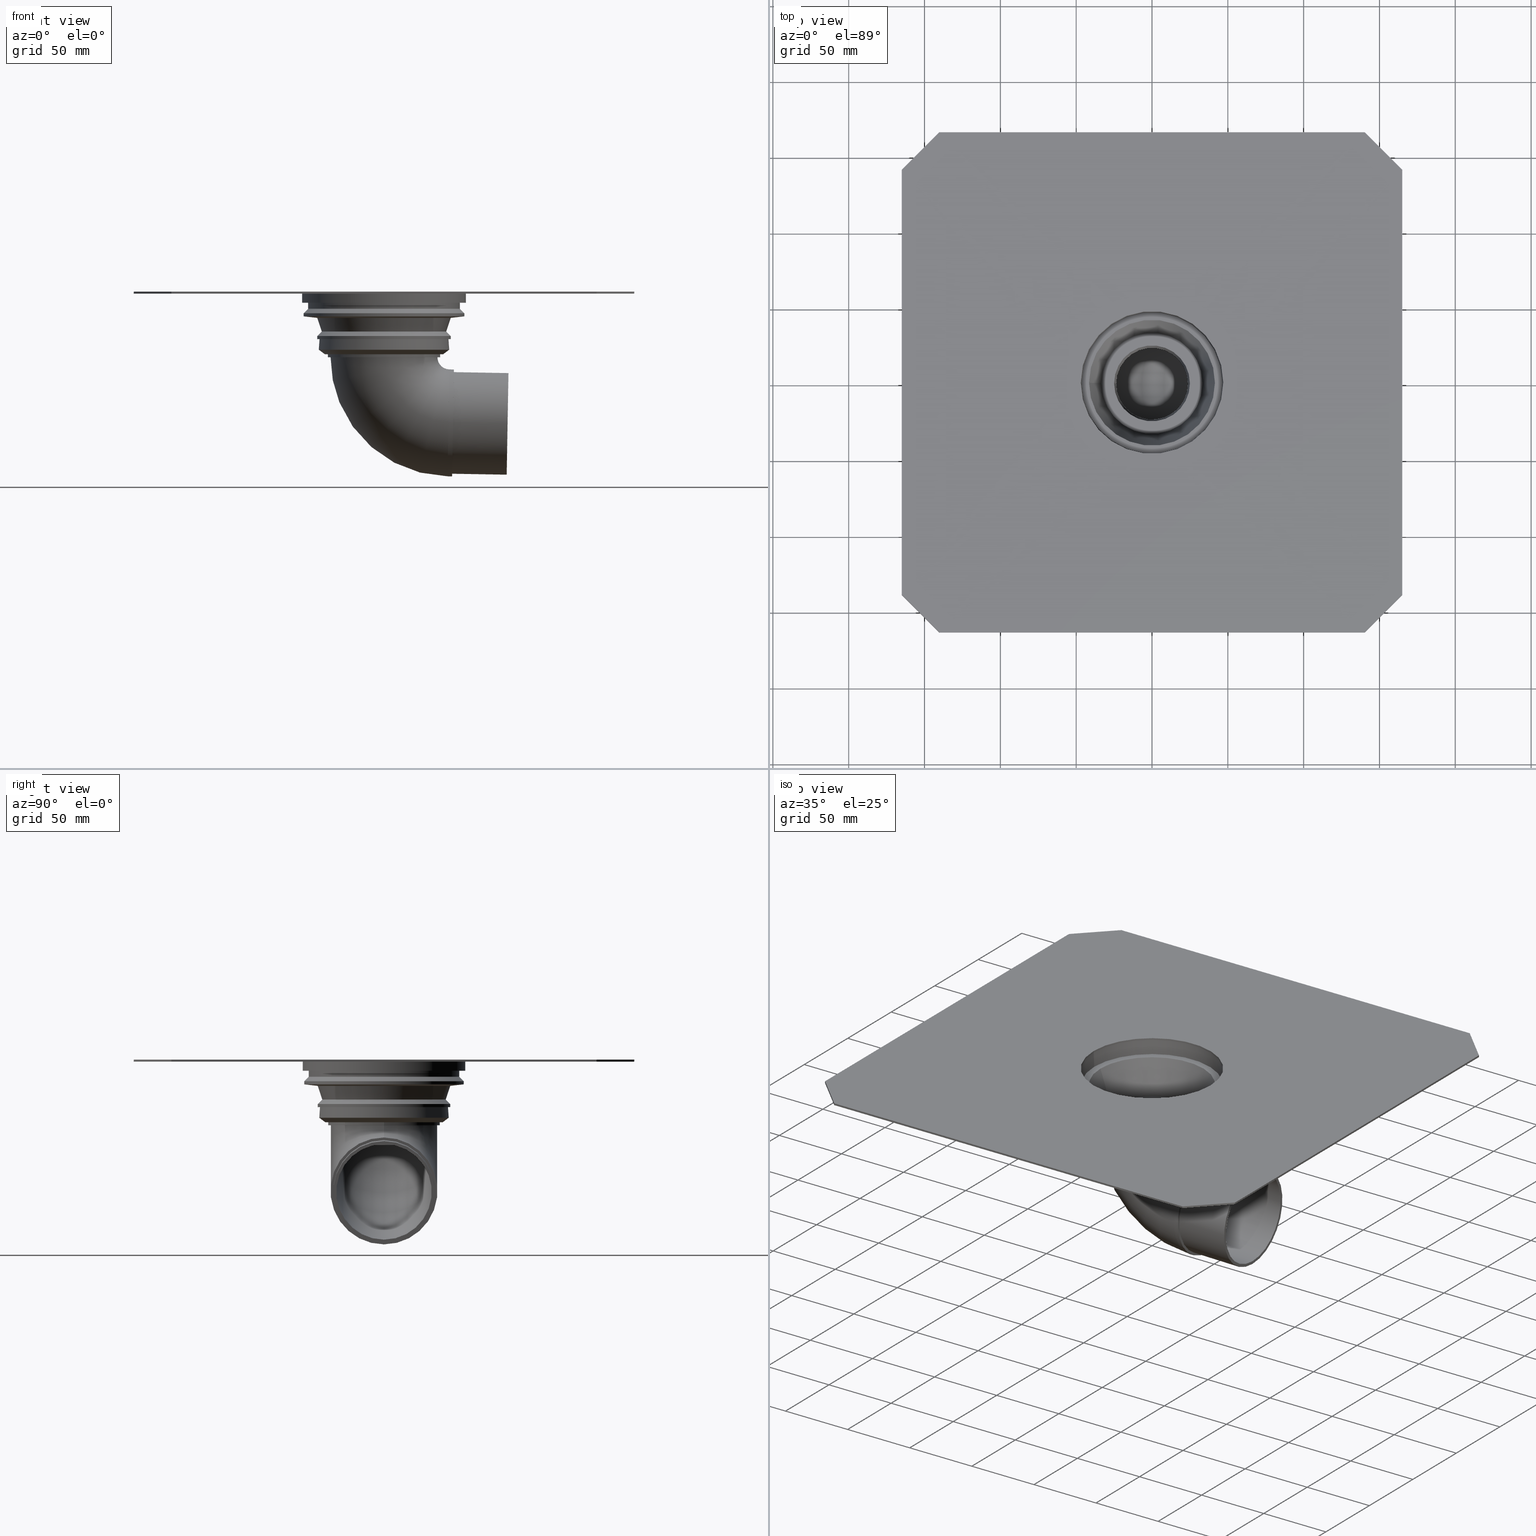
[diagram: canonical four-view strip — front | top / right | iso, engineering-drawing reading convention]
A machine part, canonical four-view strip (front | top / right | iso — engineering-drawing reading convention). The complete STEP part file that produces these views, byte-faithful:
ISO-10303-21;
HEADER;
/* Generated by software containing ST-Developer
 * from STEP Tools, Inc. (www.steptools.com) 
 */
/* OPTION: using custom renumber hook */

FILE_DESCRIPTION(
/* description */ ('STEP AP214'),
/* implementation_level */ '2;1');

FILE_NAME(
/* name */ '482063001(1)',
/* time_stamp */ '2022-12-23T08:21:42+01:00',
/* author */ ('License CC BY-ND 4.0'),
/* organization */ ('CADENAS'),
/* preprocessor_version */ 'ST-DEVELOPER v18.102',
/* originating_system */ 'PARTsolutions',
/* authorisation */ '  ');

FILE_SCHEMA (('AUTOMOTIVE_DESIGN {1 0 10303 214 3 1 1}'));
ENDSEC;

DATA;
#10=PROPERTY_DEFINITION_REPRESENTATION(#14,#12);
#11=PROPERTY_DEFINITION_REPRESENTATION(#15,#13);
#12=REPRESENTATION('',(#16),#991);
#13=REPRESENTATION('',(#17),#991);
#14=PROPERTY_DEFINITION('pmi validation property','',#996);
#15=PROPERTY_DEFINITION('pmi validation property','',#996);
#16=VALUE_REPRESENTATION_ITEM('number of annotations',COUNT_MEASURE(0.));
#17=VALUE_REPRESENTATION_ITEM('number of views',COUNT_MEASURE(0.));
#18=SHAPE_REPRESENTATION_RELATIONSHIP('','',#579,#19);
#19=ADVANCED_BREP_SHAPE_REPRESENTATION('',(#577),#991);
#20=TOROIDAL_SURFACE('',#642,43.25,33.25);
#21=TOROIDAL_SURFACE('',#644,43.25,35.25);
#22=CONICAL_SURFACE('',#600,47.,0.0499583957219435);
#23=CONICAL_SURFACE('',#604,41.5,0.321750554396642);
#24=CONICAL_SURFACE('',#608,25.,0.0659652589434213);
#25=CONICAL_SURFACE('',#612,26.6421818181818,0.0659587263801632);
#26=CONICAL_SURFACE('',#616,39.,0.927295218001612);
#27=CONICAL_SURFACE('',#618,43.,0.0713074647852903);
#28=CONICAL_SURFACE('',#624,44.,0.785398163397449);
#29=CONICAL_SURFACE('',#626,41.,0.321750554396642);
#30=CONICAL_SURFACE('',#628,44.,1.460139105621);
#31=CONICAL_SURFACE('',#632,53.,0.785398163397447);
#32=CIRCLE('',#589,47.);
#33=CIRCLE('',#590,47.);
#34=CIRCLE('',#593,33.25);
#35=CIRCLE('',#594,27.633);
#36=CIRCLE('',#596,54.);
#37=CIRCLE('',#597,50.);
#38=CIRCLE('',#599,54.);
#39=CIRCLE('',#601,46.5);
#40=CIRCLE('',#603,41.5);
#41=CIRCLE('',#605,33.35);
#42=CIRCLE('',#607,25.);
#43=CIRCLE('',#609,23.6424442609414);
#44=CIRCLE('',#611,26.6421818181818);
#45=CIRCLE('',#614,39.);
#46=CIRCLE('',#615,37.);
#47=CIRCLE('',#617,43.);
#48=CIRCLE('',#619,42.5);
#49=CIRCLE('',#621,44.);
#50=CIRCLE('',#623,44.);
#51=CIRCLE('',#625,41.);
#52=CIRCLE('',#627,44.);
#53=CIRCLE('',#629,53.);
#54=CIRCLE('',#631,53.);
#55=CIRCLE('',#633,50.);
#56=CIRCLE('',#637,35.25);
#57=CIRCLE('',#638,37.);
#58=CIRCLE('',#640,33.25);
#59=CIRCLE('',#643,33.25);
#60=CIRCLE('',#645,35.25);
#61=CIRCLE('',#647,31.5);
#62=CIRCLE('',#649,31.5);
#63=CIRCLE('',#651,35.25);
#64=CIRCLE('',#653,33.5);
#65=CIRCLE('',#655,33.5);
#66=CYLINDRICAL_SURFACE('',#588,47.);
#67=CYLINDRICAL_SURFACE('',#598,54.);
#68=CYLINDRICAL_SURFACE('',#622,44.);
#69=CYLINDRICAL_SURFACE('',#630,53.);
#70=CYLINDRICAL_SURFACE('',#634,50.);
#71=CYLINDRICAL_SURFACE('',#639,33.25);
#72=CYLINDRICAL_SURFACE('',#641,37.);
#73=CYLINDRICAL_SURFACE('',#648,31.5);
#74=CYLINDRICAL_SURFACE('',#650,35.25);
#75=CYLINDRICAL_SURFACE('',#654,33.5);
#76=ORIENTED_EDGE('',*,*,#192,.F.);
#77=ORIENTED_EDGE('',*,*,#193,.T.);
#78=ORIENTED_EDGE('',*,*,#194,.T.);
#79=ORIENTED_EDGE('',*,*,#195,.F.);
#80=ORIENTED_EDGE('',*,*,#196,.F.);
#81=ORIENTED_EDGE('',*,*,#195,.T.);
#82=ORIENTED_EDGE('',*,*,#197,.T.);
#83=ORIENTED_EDGE('',*,*,#198,.F.);
#84=ORIENTED_EDGE('',*,*,#199,.F.);
#85=ORIENTED_EDGE('',*,*,#198,.T.);
#86=ORIENTED_EDGE('',*,*,#200,.T.);
#87=ORIENTED_EDGE('',*,*,#201,.F.);
#88=ORIENTED_EDGE('',*,*,#202,.F.);
#89=ORIENTED_EDGE('',*,*,#201,.T.);
#90=ORIENTED_EDGE('',*,*,#203,.T.);
#91=ORIENTED_EDGE('',*,*,#204,.F.);
#92=ORIENTED_EDGE('',*,*,#205,.F.);
#93=ORIENTED_EDGE('',*,*,#204,.T.);
#94=ORIENTED_EDGE('',*,*,#206,.T.);
#95=ORIENTED_EDGE('',*,*,#207,.F.);
#96=ORIENTED_EDGE('',*,*,#208,.F.);
#97=ORIENTED_EDGE('',*,*,#207,.T.);
#98=ORIENTED_EDGE('',*,*,#209,.T.);
#99=ORIENTED_EDGE('',*,*,#210,.F.);
#100=ORIENTED_EDGE('',*,*,#211,.F.);
#101=ORIENTED_EDGE('',*,*,#210,.T.);
#102=ORIENTED_EDGE('',*,*,#212,.T.);
#103=ORIENTED_EDGE('',*,*,#213,.F.);
#104=ORIENTED_EDGE('',*,*,#214,.T.);
#105=ORIENTED_EDGE('',*,*,#215,.T.);
#106=ORIENTED_EDGE('',*,*,#216,.F.);
#107=ORIENTED_EDGE('',*,*,#213,.T.);
#108=ORIENTED_EDGE('',*,*,#217,.T.);
#109=ORIENTED_EDGE('',*,*,#193,.F.);
#110=ORIENTED_EDGE('',*,*,#218,.F.);
#111=ORIENTED_EDGE('',*,*,#219,.F.);
#112=ORIENTED_EDGE('',*,*,#220,.T.);
#113=ORIENTED_EDGE('',*,*,#221,.F.);
#114=ORIENTED_EDGE('',*,*,#222,.T.);
#115=ORIENTED_EDGE('',*,*,#220,.F.);
#116=ORIENTED_EDGE('',*,*,#223,.T.);
#117=ORIENTED_EDGE('',*,*,#214,.F.);
#118=ORIENTED_EDGE('',*,*,#224,.T.);
#119=ORIENTED_EDGE('',*,*,#223,.F.);
#120=ORIENTED_EDGE('',*,*,#225,.T.);
#121=ORIENTED_EDGE('',*,*,#224,.F.);
#122=ORIENTED_EDGE('',*,*,#226,.T.);
#123=ORIENTED_EDGE('',*,*,#225,.F.);
#124=ORIENTED_EDGE('',*,*,#227,.T.);
#125=ORIENTED_EDGE('',*,*,#226,.F.);
#126=ORIENTED_EDGE('',*,*,#228,.T.);
#127=ORIENTED_EDGE('',*,*,#227,.F.);
#128=ORIENTED_EDGE('',*,*,#219,.T.);
#129=ORIENTED_EDGE('',*,*,#228,.F.);
#130=ORIENTED_EDGE('',*,*,#229,.T.);
#131=ORIENTED_EDGE('',*,*,#230,.F.);
#132=ORIENTED_EDGE('',*,*,#231,.T.);
#133=ORIENTED_EDGE('',*,*,#229,.F.);
#134=ORIENTED_EDGE('',*,*,#232,.T.);
#135=ORIENTED_EDGE('',*,*,#231,.F.);
#136=ORIENTED_EDGE('',*,*,#233,.T.);
#137=ORIENTED_EDGE('',*,*,#232,.F.);
#138=ORIENTED_EDGE('',*,*,#234,.T.);
#139=ORIENTED_EDGE('',*,*,#233,.F.);
#140=ORIENTED_EDGE('',*,*,#235,.T.);
#141=ORIENTED_EDGE('',*,*,#234,.F.);
#142=ORIENTED_EDGE('',*,*,#236,.T.);
#143=ORIENTED_EDGE('',*,*,#235,.F.);
#144=ORIENTED_EDGE('',*,*,#237,.T.);
#145=ORIENTED_EDGE('',*,*,#236,.F.);
#146=ORIENTED_EDGE('',*,*,#238,.T.);
#147=ORIENTED_EDGE('',*,*,#237,.F.);
#148=ORIENTED_EDGE('',*,*,#239,.T.);
#149=ORIENTED_EDGE('',*,*,#238,.F.);
#150=ORIENTED_EDGE('',*,*,#221,.T.);
#151=ORIENTED_EDGE('',*,*,#239,.F.);
#152=ORIENTED_EDGE('',*,*,#222,.F.);
#153=ORIENTED_EDGE('',*,*,#194,.F.);
#154=ORIENTED_EDGE('',*,*,#217,.F.);
#155=ORIENTED_EDGE('',*,*,#212,.F.);
#156=ORIENTED_EDGE('',*,*,#209,.F.);
#157=ORIENTED_EDGE('',*,*,#206,.F.);
#158=ORIENTED_EDGE('',*,*,#203,.F.);
#159=ORIENTED_EDGE('',*,*,#200,.F.);
#160=ORIENTED_EDGE('',*,*,#197,.F.);
#161=ORIENTED_EDGE('',*,*,#240,.T.);
#162=ORIENTED_EDGE('',*,*,#241,.F.);
#163=ORIENTED_EDGE('',*,*,#218,.T.);
#164=ORIENTED_EDGE('',*,*,#242,.F.);
#165=ORIENTED_EDGE('',*,*,#241,.T.);
#166=ORIENTED_EDGE('',*,*,#230,.T.);
#167=ORIENTED_EDGE('',*,*,#243,.F.);
#168=ORIENTED_EDGE('',*,*,#242,.T.);
#169=ORIENTED_EDGE('',*,*,#244,.T.);
#170=ORIENTED_EDGE('',*,*,#240,.F.);
#171=ORIENTED_EDGE('',*,*,#243,.T.);
#172=ORIENTED_EDGE('',*,*,#245,.F.);
#173=ORIENTED_EDGE('',*,*,#245,.T.);
#174=ORIENTED_EDGE('',*,*,#246,.F.);
#175=ORIENTED_EDGE('',*,*,#247,.T.);
#176=ORIENTED_EDGE('',*,*,#244,.F.);
#177=ORIENTED_EDGE('',*,*,#248,.T.);
#178=ORIENTED_EDGE('',*,*,#247,.F.);
#179=ORIENTED_EDGE('',*,*,#249,.T.);
#180=ORIENTED_EDGE('',*,*,#248,.F.);
#181=ORIENTED_EDGE('',*,*,#246,.T.);
#182=ORIENTED_EDGE('',*,*,#249,.F.);
#183=ORIENTED_EDGE('',*,*,#215,.F.);
#184=ORIENTED_EDGE('',*,*,#192,.T.);
#185=ORIENTED_EDGE('',*,*,#196,.T.);
#186=ORIENTED_EDGE('',*,*,#199,.T.);
#187=ORIENTED_EDGE('',*,*,#202,.T.);
#188=ORIENTED_EDGE('',*,*,#205,.T.);
#189=ORIENTED_EDGE('',*,*,#208,.T.);
#190=ORIENTED_EDGE('',*,*,#211,.T.);
#191=ORIENTED_EDGE('',*,*,#216,.T.);
#192=EDGE_CURVE('',#250,#251,#300,.T.);
#193=EDGE_CURVE('',#250,#252,#301,.T.);
#194=EDGE_CURVE('',#252,#253,#302,.T.);
#195=EDGE_CURVE('',#251,#253,#303,.T.);
#196=EDGE_CURVE('',#251,#254,#304,.T.);
#197=EDGE_CURVE('',#253,#255,#305,.T.);
#198=EDGE_CURVE('',#254,#255,#306,.T.);
#199=EDGE_CURVE('',#254,#256,#307,.T.);
#200=EDGE_CURVE('',#255,#257,#308,.T.);
#201=EDGE_CURVE('',#256,#257,#309,.T.);
#202=EDGE_CURVE('',#256,#258,#310,.T.);
#203=EDGE_CURVE('',#257,#259,#311,.T.);
#204=EDGE_CURVE('',#258,#259,#312,.T.);
#205=EDGE_CURVE('',#258,#260,#313,.T.);
#206=EDGE_CURVE('',#259,#261,#314,.T.);
#207=EDGE_CURVE('',#260,#261,#315,.T.);
#208=EDGE_CURVE('',#260,#262,#316,.T.);
#209=EDGE_CURVE('',#261,#263,#317,.T.);
#210=EDGE_CURVE('',#262,#263,#318,.T.);
#211=EDGE_CURVE('',#262,#264,#319,.T.);
#212=EDGE_CURVE('',#263,#265,#320,.T.);
#213=EDGE_CURVE('',#264,#265,#321,.T.);
#214=EDGE_CURVE('',#266,#266,#32,.T.);
#215=EDGE_CURVE('',#267,#267,#33,.T.);
#216=EDGE_CURVE('',#264,#250,#322,.T.);
#217=EDGE_CURVE('',#265,#252,#323,.T.);
#218=EDGE_CURVE('',#268,#268,#34,.F.);
#219=EDGE_CURVE('',#269,#269,#35,.T.);
#220=EDGE_CURVE('',#270,#270,#36,.T.);
#221=EDGE_CURVE('',#271,#271,#37,.T.);
#222=EDGE_CURVE('',#272,#272,#38,.F.);
#223=EDGE_CURVE('',#273,#273,#39,.T.);
#224=EDGE_CURVE('',#274,#274,#40,.T.);
#225=EDGE_CURVE('',#275,#275,#41,.T.);
#226=EDGE_CURVE('',#276,#276,#42,.T.);
#227=EDGE_CURVE('',#277,#277,#43,.T.);
#228=EDGE_CURVE('',#278,#278,#44,.T.);
#229=EDGE_CURVE('',#279,#279,#45,.T.);
#230=EDGE_CURVE('',#280,#280,#46,.T.);
#231=EDGE_CURVE('',#281,#281,#47,.T.);
#232=EDGE_CURVE('',#282,#282,#48,.T.);
#233=EDGE_CURVE('',#283,#283,#49,.T.);
#234=EDGE_CURVE('',#284,#284,#50,.T.);
#235=EDGE_CURVE('',#285,#285,#51,.T.);
#236=EDGE_CURVE('',#286,#286,#52,.T.);
#237=EDGE_CURVE('',#287,#287,#53,.T.);
#238=EDGE_CURVE('',#288,#288,#54,.T.);
#239=EDGE_CURVE('',#289,#289,#55,.T.);
#240=EDGE_CURVE('',#290,#290,#56,.T.);
#241=EDGE_CURVE('',#291,#291,#57,.T.);
#242=EDGE_CURVE('',#292,#292,#58,.T.);
#243=EDGE_CURVE('',#293,#293,#59,.T.);
#244=EDGE_CURVE('',#294,#294,#60,.T.);
#245=EDGE_CURVE('',#295,#295,#61,.T.);
#246=EDGE_CURVE('',#296,#296,#62,.T.);
#247=EDGE_CURVE('',#297,#297,#63,.T.);
#248=EDGE_CURVE('',#298,#298,#64,.T.);
#249=EDGE_CURVE('',#299,#299,#65,.T.);
#250=VERTEX_POINT('',#841);
#251=VERTEX_POINT('',#842);
#252=VERTEX_POINT('',#844);
#253=VERTEX_POINT('',#846);
#254=VERTEX_POINT('',#850);
#255=VERTEX_POINT('',#852);
#256=VERTEX_POINT('',#856);
#257=VERTEX_POINT('',#858);
#258=VERTEX_POINT('',#862);
#259=VERTEX_POINT('',#864);
#260=VERTEX_POINT('',#868);
#261=VERTEX_POINT('',#870);
#262=VERTEX_POINT('',#874);
#263=VERTEX_POINT('',#876);
#264=VERTEX_POINT('',#880);
#265=VERTEX_POINT('',#882);
#266=VERTEX_POINT('',#886);
#267=VERTEX_POINT('',#888);
#268=VERTEX_POINT('',#894);
#269=VERTEX_POINT('',#896);
#270=VERTEX_POINT('',#899);
#271=VERTEX_POINT('',#901);
#272=VERTEX_POINT('',#904);
#273=VERTEX_POINT('',#907);
#274=VERTEX_POINT('',#910);
#275=VERTEX_POINT('',#913);
#276=VERTEX_POINT('',#916);
#277=VERTEX_POINT('',#919);
#278=VERTEX_POINT('',#922);
#279=VERTEX_POINT('',#926);
#280=VERTEX_POINT('',#928);
#281=VERTEX_POINT('',#931);
#282=VERTEX_POINT('',#934);
#283=VERTEX_POINT('',#937);
#284=VERTEX_POINT('',#940);
#285=VERTEX_POINT('',#943);
#286=VERTEX_POINT('',#946);
#287=VERTEX_POINT('',#949);
#288=VERTEX_POINT('',#952);
#289=VERTEX_POINT('',#955);
#290=VERTEX_POINT('',#960);
#291=VERTEX_POINT('',#962);
#292=VERTEX_POINT('',#965);
#293=VERTEX_POINT('',#969);
#294=VERTEX_POINT('',#972);
#295=VERTEX_POINT('',#975);
#296=VERTEX_POINT('',#978);
#297=VERTEX_POINT('',#981);
#298=VERTEX_POINT('',#984);
#299=VERTEX_POINT('',#987);
#300=LINE('',#840,#324);
#301=LINE('',#843,#325);
#302=LINE('',#845,#326);
#303=LINE('',#847,#327);
#304=LINE('',#849,#328);
#305=LINE('',#851,#329);
#306=LINE('',#853,#330);
#307=LINE('',#855,#331);
#308=LINE('',#857,#332);
#309=LINE('',#859,#333);
#310=LINE('',#861,#334);
#311=LINE('',#863,#335);
#312=LINE('',#865,#336);
#313=LINE('',#867,#337);
#314=LINE('',#869,#338);
#315=LINE('',#871,#339);
#316=LINE('',#873,#340);
#317=LINE('',#875,#341);
#318=LINE('',#877,#342);
#319=LINE('',#879,#343);
#320=LINE('',#881,#344);
#321=LINE('',#883,#345);
#322=LINE('',#890,#346);
#323=LINE('',#891,#347);
#324=VECTOR('',#662,1000.);
#325=VECTOR('',#663,1000.);
#326=VECTOR('',#664,1000.);
#327=VECTOR('',#665,1000.);
#328=VECTOR('',#668,1000.);
#329=VECTOR('',#669,1000.);
#330=VECTOR('',#670,1000.);
#331=VECTOR('',#673,1000.);
#332=VECTOR('',#674,1000.);
#333=VECTOR('',#675,1000.);
#334=VECTOR('',#678,1000.);
#335=VECTOR('',#679,1000.);
#336=VECTOR('',#680,1000.);
#337=VECTOR('',#683,1000.);
#338=VECTOR('',#684,1000.);
#339=VECTOR('',#685,1000.);
#340=VECTOR('',#688,1000.);
#341=VECTOR('',#689,1000.);
#342=VECTOR('',#690,1000.);
#343=VECTOR('',#693,1000.);
#344=VECTOR('',#694,1000.);
#345=VECTOR('',#695,1000.);
#346=VECTOR('',#704,1000.);
#347=VECTOR('',#705,1000.);
#348=EDGE_LOOP('',(#76,#77,#78,#79));
#349=EDGE_LOOP('',(#80,#81,#82,#83));
#350=EDGE_LOOP('',(#84,#85,#86,#87));
#351=EDGE_LOOP('',(#88,#89,#90,#91));
#352=EDGE_LOOP('',(#92,#93,#94,#95));
#353=EDGE_LOOP('',(#96,#97,#98,#99));
#354=EDGE_LOOP('',(#100,#101,#102,#103));
#355=EDGE_LOOP('',(#104));
#356=EDGE_LOOP('',(#105));
#357=EDGE_LOOP('',(#106,#107,#108,#109));
#358=EDGE_LOOP('',(#110));
#359=EDGE_LOOP('',(#111));
#360=EDGE_LOOP('',(#112));
#361=EDGE_LOOP('',(#113));
#362=EDGE_LOOP('',(#114));
#363=EDGE_LOOP('',(#115));
#364=EDGE_LOOP('',(#116));
#365=EDGE_LOOP('',(#117));
#366=EDGE_LOOP('',(#118));
#367=EDGE_LOOP('',(#119));
#368=EDGE_LOOP('',(#120));
#369=EDGE_LOOP('',(#121));
#370=EDGE_LOOP('',(#122));
#371=EDGE_LOOP('',(#123));
#372=EDGE_LOOP('',(#124));
#373=EDGE_LOOP('',(#125));
#374=EDGE_LOOP('',(#126));
#375=EDGE_LOOP('',(#127));
#376=EDGE_LOOP('',(#128));
#377=EDGE_LOOP('',(#129));
#378=EDGE_LOOP('',(#130));
#379=EDGE_LOOP('',(#131));
#380=EDGE_LOOP('',(#132));
#381=EDGE_LOOP('',(#133));
#382=EDGE_LOOP('',(#134));
#383=EDGE_LOOP('',(#135));
#384=EDGE_LOOP('',(#136));
#385=EDGE_LOOP('',(#137));
#386=EDGE_LOOP('',(#138));
#387=EDGE_LOOP('',(#139));
#388=EDGE_LOOP('',(#140));
#389=EDGE_LOOP('',(#141));
#390=EDGE_LOOP('',(#142));
#391=EDGE_LOOP('',(#143));
#392=EDGE_LOOP('',(#144));
#393=EDGE_LOOP('',(#145));
#394=EDGE_LOOP('',(#146));
#395=EDGE_LOOP('',(#147));
#396=EDGE_LOOP('',(#148));
#397=EDGE_LOOP('',(#149));
#398=EDGE_LOOP('',(#150));
#399=EDGE_LOOP('',(#151));
#400=EDGE_LOOP('',(#152));
#401=EDGE_LOOP('',(#153,#154,#155,#156,#157,#158,#159,#160));
#402=EDGE_LOOP('',(#161));
#403=EDGE_LOOP('',(#162));
#404=EDGE_LOOP('',(#163));
#405=EDGE_LOOP('',(#164));
#406=EDGE_LOOP('',(#165));
#407=EDGE_LOOP('',(#166));
#408=EDGE_LOOP('',(#167));
#409=EDGE_LOOP('',(#168));
#410=EDGE_LOOP('',(#169));
#411=EDGE_LOOP('',(#170));
#412=EDGE_LOOP('',(#171));
#413=EDGE_LOOP('',(#172));
#414=EDGE_LOOP('',(#173));
#415=EDGE_LOOP('',(#174));
#416=EDGE_LOOP('',(#175));
#417=EDGE_LOOP('',(#176));
#418=EDGE_LOOP('',(#177));
#419=EDGE_LOOP('',(#178));
#420=EDGE_LOOP('',(#179));
#421=EDGE_LOOP('',(#180));
#422=EDGE_LOOP('',(#181));
#423=EDGE_LOOP('',(#182));
#424=EDGE_LOOP('',(#183));
#425=EDGE_LOOP('',(#184,#185,#186,#187,#188,#189,#190,#191));
#426=FACE_BOUND('',#348,.T.);
#427=FACE_BOUND('',#349,.T.);
#428=FACE_BOUND('',#350,.T.);
#429=FACE_BOUND('',#351,.T.);
#430=FACE_BOUND('',#352,.T.);
#431=FACE_BOUND('',#353,.T.);
#432=FACE_BOUND('',#354,.T.);
#433=FACE_BOUND('',#355,.T.);
#434=FACE_BOUND('',#356,.T.);
#435=FACE_BOUND('',#357,.T.);
#436=FACE_BOUND('',#358,.T.);
#437=FACE_BOUND('',#359,.T.);
#438=FACE_BOUND('',#360,.T.);
#439=FACE_BOUND('',#361,.T.);
#440=FACE_BOUND('',#362,.T.);
#441=FACE_BOUND('',#363,.T.);
#442=FACE_BOUND('',#364,.T.);
#443=FACE_BOUND('',#365,.T.);
#444=FACE_BOUND('',#366,.T.);
#445=FACE_BOUND('',#367,.T.);
#446=FACE_BOUND('',#368,.T.);
#447=FACE_BOUND('',#369,.T.);
#448=FACE_BOUND('',#370,.T.);
#449=FACE_BOUND('',#371,.T.);
#450=FACE_BOUND('',#372,.T.);
#451=FACE_BOUND('',#373,.T.);
#452=FACE_BOUND('',#374,.T.);
#453=FACE_BOUND('',#375,.T.);
#454=FACE_BOUND('',#376,.T.);
#455=FACE_BOUND('',#377,.T.);
#456=FACE_BOUND('',#378,.T.);
#457=FACE_BOUND('',#379,.T.);
#458=FACE_BOUND('',#380,.T.);
#459=FACE_BOUND('',#381,.T.);
#460=FACE_BOUND('',#382,.T.);
#461=FACE_BOUND('',#383,.T.);
#462=FACE_BOUND('',#384,.T.);
#463=FACE_BOUND('',#385,.T.);
#464=FACE_BOUND('',#386,.T.);
#465=FACE_BOUND('',#387,.T.);
#466=FACE_BOUND('',#388,.T.);
#467=FACE_BOUND('',#389,.T.);
#468=FACE_BOUND('',#390,.T.);
#469=FACE_BOUND('',#391,.T.);
#470=FACE_BOUND('',#392,.T.);
#471=FACE_BOUND('',#393,.T.);
#472=FACE_BOUND('',#394,.T.);
#473=FACE_BOUND('',#395,.T.);
#474=FACE_BOUND('',#396,.T.);
#475=FACE_BOUND('',#397,.T.);
#476=FACE_BOUND('',#398,.T.);
#477=FACE_BOUND('',#399,.T.);
#478=FACE_BOUND('',#400,.T.);
#479=FACE_BOUND('',#401,.T.);
#480=FACE_BOUND('',#402,.T.);
#481=FACE_BOUND('',#403,.T.);
#482=FACE_BOUND('',#404,.T.);
#483=FACE_BOUND('',#405,.T.);
#484=FACE_BOUND('',#406,.T.);
#485=FACE_BOUND('',#407,.T.);
#486=FACE_BOUND('',#408,.T.);
#487=FACE_BOUND('',#409,.T.);
#488=FACE_BOUND('',#410,.T.);
#489=FACE_BOUND('',#411,.T.);
#490=FACE_BOUND('',#412,.T.);
#491=FACE_BOUND('',#413,.T.);
#492=FACE_BOUND('',#414,.T.);
#493=FACE_BOUND('',#415,.T.);
#494=FACE_BOUND('',#416,.T.);
#495=FACE_BOUND('',#417,.T.);
#496=FACE_BOUND('',#418,.T.);
#497=FACE_BOUND('',#419,.T.);
#498=FACE_BOUND('',#420,.T.);
#499=FACE_BOUND('',#421,.T.);
#500=FACE_BOUND('',#422,.T.);
#501=FACE_BOUND('',#423,.T.);
#502=FACE_BOUND('',#424,.T.);
#503=FACE_BOUND('',#425,.T.);
#504=PLANE('',#581);
#505=PLANE('',#582);
#506=PLANE('',#583);
#507=PLANE('',#584);
#508=PLANE('',#585);
#509=PLANE('',#586);
#510=PLANE('',#587);
#511=PLANE('',#591);
#512=PLANE('',#592);
#513=PLANE('',#595);
#514=PLANE('',#602);
#515=PLANE('',#606);
#516=PLANE('',#610);
#517=PLANE('',#613);
#518=PLANE('',#620);
#519=PLANE('',#635);
#520=PLANE('',#636);
#521=PLANE('',#646);
#522=PLANE('',#652);
#523=PLANE('',#656);
#524=PLANE('',#657);
#525=ADVANCED_FACE('',(#426),#504,.F.);
#526=ADVANCED_FACE('',(#427),#505,.F.);
#527=ADVANCED_FACE('',(#428),#506,.F.);
#528=ADVANCED_FACE('',(#429),#507,.F.);
#529=ADVANCED_FACE('',(#430),#508,.F.);
#530=ADVANCED_FACE('',(#431),#509,.F.);
#531=ADVANCED_FACE('',(#432),#510,.F.);
#532=ADVANCED_FACE('',(#433,#434),#66,.F.);
#533=ADVANCED_FACE('',(#435),#511,.F.);
#534=ADVANCED_FACE('',(#436,#437),#512,.T.);
#535=ADVANCED_FACE('',(#438,#439),#513,.T.);
#536=ADVANCED_FACE('',(#440,#441),#67,.T.);
#537=ADVANCED_FACE('',(#442,#443),#22,.F.);
#538=ADVANCED_FACE('',(#444,#445),#514,.T.);
#539=ADVANCED_FACE('',(#446,#447),#23,.F.);
#540=ADVANCED_FACE('',(#448,#449),#515,.T.);
#541=ADVANCED_FACE('',(#450,#451),#24,.F.);
#542=ADVANCED_FACE('',(#452,#453),#516,.T.);
#543=ADVANCED_FACE('',(#454,#455),#25,.T.);
#544=ADVANCED_FACE('',(#456,#457),#517,.T.);
#545=ADVANCED_FACE('',(#458,#459),#26,.T.);
#546=ADVANCED_FACE('',(#460,#461),#27,.T.);
#547=ADVANCED_FACE('',(#462,#463),#518,.T.);
#548=ADVANCED_FACE('',(#464,#465),#68,.T.);
#549=ADVANCED_FACE('',(#466,#467),#28,.T.);
#550=ADVANCED_FACE('',(#468,#469),#29,.T.);
#551=ADVANCED_FACE('',(#470,#471),#30,.T.);
#552=ADVANCED_FACE('',(#472,#473),#69,.T.);
#553=ADVANCED_FACE('',(#474,#475),#31,.T.);
#554=ADVANCED_FACE('',(#476,#477),#70,.T.);
#555=ADVANCED_FACE('',(#478,#479),#519,.F.);
#556=ADVANCED_FACE('',(#480,#481),#520,.T.);
#557=ADVANCED_FACE('',(#482,#483),#71,.F.);
#558=ADVANCED_FACE('',(#484,#485),#72,.T.);
#559=ADVANCED_FACE('',(#486,#487),#20,.F.);
#560=ADVANCED_FACE('',(#488,#489),#21,.T.);
#561=ADVANCED_FACE('',(#490,#491),#521,.T.);
#562=ADVANCED_FACE('',(#492,#493),#73,.F.);
#563=ADVANCED_FACE('',(#494,#495),#74,.T.);
#564=ADVANCED_FACE('',(#496,#497),#522,.T.);
#565=ADVANCED_FACE('',(#498,#499),#75,.T.);
#566=ADVANCED_FACE('',(#500,#501),#523,.T.);
#567=ADVANCED_FACE('',(#502,#503),#524,.T.);
#568=CLOSED_SHELL('',(#525,#526,#527,#528,#529,#530,#531,#532,#533,#534,
#535,#536,#537,#538,#539,#540,#541,#542,#543,#544,#545,#546,#547,#548,#549,
#550,#551,#552,#553,#554,#555,#556,#557,#558,#559,#560,#561,#562,#563,#564,
#565,#566,#567));
#569=STYLED_ITEM('',(#570),#577);
#570=PRESENTATION_STYLE_ASSIGNMENT((#571));
#571=SURFACE_STYLE_USAGE(.BOTH.,#572);
#572=SURFACE_SIDE_STYLE('',(#573));
#573=SURFACE_STYLE_FILL_AREA(#574);
#574=FILL_AREA_STYLE('',(#575));
#575=FILL_AREA_STYLE_COLOUR('',#576);
#576=COLOUR_RGB('',0.689999997615814,0.689999997615814,0.689999997615814);
#577=MANIFOLD_SOLID_BREP('482063001(1)',#568);
#578=SHAPE_DEFINITION_REPRESENTATION(#996,#579);
#579=SHAPE_REPRESENTATION('482063001(1)',(#580),#991);
#580=AXIS2_PLACEMENT_3D('',#838,#658,#659);
#581=AXIS2_PLACEMENT_3D('',#839,#660,#661);
#582=AXIS2_PLACEMENT_3D('',#848,#666,#667);
#583=AXIS2_PLACEMENT_3D('',#854,#671,#672);
#584=AXIS2_PLACEMENT_3D('',#860,#676,#677);
#585=AXIS2_PLACEMENT_3D('',#866,#681,#682);
#586=AXIS2_PLACEMENT_3D('',#872,#686,#687);
#587=AXIS2_PLACEMENT_3D('',#878,#691,#692);
#588=AXIS2_PLACEMENT_3D('',#884,#696,#697);
#589=AXIS2_PLACEMENT_3D('',#885,#698,#699);
#590=AXIS2_PLACEMENT_3D('',#887,#700,#701);
#591=AXIS2_PLACEMENT_3D('',#889,#702,#703);
#592=AXIS2_PLACEMENT_3D('',#892,#706,#707);
#593=AXIS2_PLACEMENT_3D('',#893,#708,#709);
#594=AXIS2_PLACEMENT_3D('',#895,#710,#711);
#595=AXIS2_PLACEMENT_3D('',#897,#712,#713);
#596=AXIS2_PLACEMENT_3D('',#898,#714,#715);
#597=AXIS2_PLACEMENT_3D('',#900,#716,#717);
#598=AXIS2_PLACEMENT_3D('',#902,#718,#719);
#599=AXIS2_PLACEMENT_3D('',#903,#720,#721);
#600=AXIS2_PLACEMENT_3D('',#905,#722,#723);
#601=AXIS2_PLACEMENT_3D('',#906,#724,#725);
#602=AXIS2_PLACEMENT_3D('',#908,#726,#727);
#603=AXIS2_PLACEMENT_3D('',#909,#728,#729);
#604=AXIS2_PLACEMENT_3D('',#911,#730,#731);
#605=AXIS2_PLACEMENT_3D('',#912,#732,#733);
#606=AXIS2_PLACEMENT_3D('',#914,#734,#735);
#607=AXIS2_PLACEMENT_3D('',#915,#736,#737);
#608=AXIS2_PLACEMENT_3D('',#917,#738,#739);
#609=AXIS2_PLACEMENT_3D('',#918,#740,#741);
#610=AXIS2_PLACEMENT_3D('',#920,#742,#743);
#611=AXIS2_PLACEMENT_3D('',#921,#744,#745);
#612=AXIS2_PLACEMENT_3D('',#923,#746,#747);
#613=AXIS2_PLACEMENT_3D('',#924,#748,#749);
#614=AXIS2_PLACEMENT_3D('',#925,#750,#751);
#615=AXIS2_PLACEMENT_3D('',#927,#752,#753);
#616=AXIS2_PLACEMENT_3D('',#929,#754,#755);
#617=AXIS2_PLACEMENT_3D('',#930,#756,#757);
#618=AXIS2_PLACEMENT_3D('',#932,#758,#759);
#619=AXIS2_PLACEMENT_3D('',#933,#760,#761);
#620=AXIS2_PLACEMENT_3D('',#935,#762,#763);
#621=AXIS2_PLACEMENT_3D('',#936,#764,#765);
#622=AXIS2_PLACEMENT_3D('',#938,#766,#767);
#623=AXIS2_PLACEMENT_3D('',#939,#768,#769);
#624=AXIS2_PLACEMENT_3D('',#941,#770,#771);
#625=AXIS2_PLACEMENT_3D('',#942,#772,#773);
#626=AXIS2_PLACEMENT_3D('',#944,#774,#775);
#627=AXIS2_PLACEMENT_3D('',#945,#776,#777);
#628=AXIS2_PLACEMENT_3D('',#947,#778,#779);
#629=AXIS2_PLACEMENT_3D('',#948,#780,#781);
#630=AXIS2_PLACEMENT_3D('',#950,#782,#783);
#631=AXIS2_PLACEMENT_3D('',#951,#784,#785);
#632=AXIS2_PLACEMENT_3D('',#953,#786,#787);
#633=AXIS2_PLACEMENT_3D('',#954,#788,#789);
#634=AXIS2_PLACEMENT_3D('',#956,#790,#791);
#635=AXIS2_PLACEMENT_3D('',#957,#792,#793);
#636=AXIS2_PLACEMENT_3D('',#958,#794,#795);
#637=AXIS2_PLACEMENT_3D('',#959,#796,#797);
#638=AXIS2_PLACEMENT_3D('',#961,#798,#799);
#639=AXIS2_PLACEMENT_3D('',#963,#800,#801);
#640=AXIS2_PLACEMENT_3D('',#964,#802,#803);
#641=AXIS2_PLACEMENT_3D('',#966,#804,#805);
#642=AXIS2_PLACEMENT_3D('',#967,#806,#807);
#643=AXIS2_PLACEMENT_3D('',#968,#808,#809);
#644=AXIS2_PLACEMENT_3D('',#970,#810,#811);
#645=AXIS2_PLACEMENT_3D('',#971,#812,#813);
#646=AXIS2_PLACEMENT_3D('',#973,#814,#815);
#647=AXIS2_PLACEMENT_3D('',#974,#816,#817);
#648=AXIS2_PLACEMENT_3D('',#976,#818,#819);
#649=AXIS2_PLACEMENT_3D('',#977,#820,#821);
#650=AXIS2_PLACEMENT_3D('',#979,#822,#823);
#651=AXIS2_PLACEMENT_3D('',#980,#824,#825);
#652=AXIS2_PLACEMENT_3D('',#982,#826,#827);
#653=AXIS2_PLACEMENT_3D('',#983,#828,#829);
#654=AXIS2_PLACEMENT_3D('',#985,#830,#831);
#655=AXIS2_PLACEMENT_3D('',#986,#832,#833);
#656=AXIS2_PLACEMENT_3D('',#988,#834,#835);
#657=AXIS2_PLACEMENT_3D('',#989,#836,#837);
#658=DIRECTION('',(0.,0.,1.));
#659=DIRECTION('',(1.,0.,0.));
#660=DIRECTION('',(1.,0.,0.));
#661=DIRECTION('',(0.,0.,-1.));
#662=DIRECTION('',(0.,-1.,0.));
#663=DIRECTION('',(0.,0.,-1.));
#664=DIRECTION('',(0.,-1.,0.));
#665=DIRECTION('',(0.,0.,-1.));
#666=DIRECTION('',(0.707106781186548,0.707106781186548,0.));
#667=DIRECTION('',(-0.707106781186548,0.707106781186548,0.));
#668=DIRECTION('',(0.707106781186548,-0.707106781186548,1.35290595589709E-18));
#669=DIRECTION('',(0.707106781186547,-0.707106781186547,0.));
#670=DIRECTION('',(0.,0.,-1.));
#671=DIRECTION('',(0.,1.,0.));
#672=DIRECTION('',(0.,0.,1.));
#673=DIRECTION('',(1.,0.,1.91329795144501E-18));
#674=DIRECTION('',(1.,0.,0.));
#675=DIRECTION('',(0.,0.,-1.));
#676=DIRECTION('',(-0.707106781186548,0.707106781186548,0.));
#677=DIRECTION('',(-0.707106781186548,-0.707106781186548,0.));
#678=DIRECTION('',(0.707106781186548,0.707106781186548,1.35290595589709E-18));
#679=DIRECTION('',(0.707106781186547,0.707106781186547,0.));
#680=DIRECTION('',(0.,0.,-1.));
#681=DIRECTION('',(-1.,0.,0.));
#682=DIRECTION('',(0.,0.,1.));
#683=DIRECTION('',(0.,1.,0.));
#684=DIRECTION('',(0.,1.,0.));
#685=DIRECTION('',(0.,0.,-1.));
#686=DIRECTION('',(-0.707106781186548,-0.707106781186548,0.));
#687=DIRECTION('',(0.707106781186548,-0.707106781186548,0.));
#688=DIRECTION('',(-0.707106781186548,0.707106781186548,-1.35290595589709E-18));
#689=DIRECTION('',(-0.707106781186547,0.707106781186547,0.));
#690=DIRECTION('',(0.,0.,-1.));
#691=DIRECTION('',(0.,-1.,0.));
#692=DIRECTION('',(0.,0.,-1.));
#693=DIRECTION('',(-1.,0.,-1.91329795144501E-18));
#694=DIRECTION('',(-1.,0.,0.));
#695=DIRECTION('',(0.,0.,-1.));
#696=DIRECTION('',(0.,0.,-1.));
#697=DIRECTION('',(-1.,0.,0.));
#698=DIRECTION('',(0.,0.,-1.));
#699=DIRECTION('',(-1.,0.,0.));
#700=DIRECTION('',(-1.91329795144501E-18,0.,1.));
#701=DIRECTION('',(1.,0.,1.91329795144501E-18));
#702=DIRECTION('',(0.707106781186548,-0.707106781186548,0.));
#703=DIRECTION('',(0.707106781186548,0.707106781186548,0.));
#704=DIRECTION('',(-0.707106781186548,-0.707106781186548,-1.35290595589709E-18));
#705=DIRECTION('',(-0.707106781186547,-0.707106781186547,0.));
#706=DIRECTION('',(0.,0.,-1.));
#707=DIRECTION('',(-1.,0.,0.));
#708=DIRECTION('',(0.,0.,-1.));
#709=DIRECTION('',(-1.,0.,0.));
#710=DIRECTION('',(0.,0.,-1.));
#711=DIRECTION('',(-1.,0.,0.));
#712=DIRECTION('',(0.,0.,-1.));
#713=DIRECTION('',(-1.,0.,0.));
#714=DIRECTION('',(0.,0.,-1.));
#715=DIRECTION('',(-1.,0.,0.));
#716=DIRECTION('',(0.,0.,-1.));
#717=DIRECTION('',(-1.,0.,0.));
#718=DIRECTION('',(0.,0.,-1.));
#719=DIRECTION('',(-1.,0.,0.));
#720=DIRECTION('',(0.,0.,1.));
#721=DIRECTION('',(1.,0.,0.));
#722=DIRECTION('',(0.,0.,1.));
#723=DIRECTION('',(1.,0.,0.));
#724=DIRECTION('',(0.,0.,-1.));
#725=DIRECTION('',(-1.,0.,0.));
#726=DIRECTION('',(0.,0.,1.));
#727=DIRECTION('',(1.,0.,0.));
#728=DIRECTION('',(0.,0.,-1.));
#729=DIRECTION('',(-1.,0.,0.));
#730=DIRECTION('',(0.,0.,1.));
#731=DIRECTION('',(1.,0.,0.));
#732=DIRECTION('',(0.,0.,-1.));
#733=DIRECTION('',(-1.,0.,0.));
#734=DIRECTION('',(0.,0.,1.));
#735=DIRECTION('',(1.,0.,0.));
#736=DIRECTION('',(0.,0.,-1.));
#737=DIRECTION('',(-1.,0.,0.));
#738=DIRECTION('',(0.,0.,1.));
#739=DIRECTION('',(1.,0.,0.));
#740=DIRECTION('',(0.,0.,-1.));
#741=DIRECTION('',(-1.,0.,0.));
#742=DIRECTION('',(0.,0.,-1.));
#743=DIRECTION('',(-1.,0.,0.));
#744=DIRECTION('',(0.,0.,-1.));
#745=DIRECTION('',(-1.,0.,0.));
#746=DIRECTION('',(0.,0.,1.));
#747=DIRECTION('',(1.,0.,0.));
#748=DIRECTION('',(0.,0.,-1.));
#749=DIRECTION('',(-1.,0.,0.));
#750=DIRECTION('',(0.,0.,-1.));
#751=DIRECTION('',(-1.,0.,0.));
#752=DIRECTION('',(0.,0.,-1.));
#753=DIRECTION('',(-1.,0.,0.));
#754=DIRECTION('',(0.,0.,1.));
#755=DIRECTION('',(1.,0.,0.));
#756=DIRECTION('',(0.,0.,-1.));
#757=DIRECTION('',(-1.,0.,0.));
#758=DIRECTION('',(0.,0.,-1.));
#759=DIRECTION('',(-1.,0.,0.));
#760=DIRECTION('',(0.,0.,-1.));
#761=DIRECTION('',(-1.,0.,0.));
#762=DIRECTION('',(0.,0.,-1.));
#763=DIRECTION('',(-1.,0.,0.));
#764=DIRECTION('',(0.,0.,-1.));
#765=DIRECTION('',(-1.,0.,0.));
#766=DIRECTION('',(0.,0.,-1.));
#767=DIRECTION('',(-1.,0.,0.));
#768=DIRECTION('',(0.,0.,-1.));
#769=DIRECTION('',(-1.,0.,0.));
#770=DIRECTION('',(0.,0.,-1.));
#771=DIRECTION('',(-1.,0.,0.));
#772=DIRECTION('',(0.,0.,-1.));
#773=DIRECTION('',(-1.,0.,0.));
#774=DIRECTION('',(0.,0.,1.));
#775=DIRECTION('',(1.,0.,0.));
#776=DIRECTION('',(0.,0.,-1.));
#777=DIRECTION('',(-1.,0.,0.));
#778=DIRECTION('',(0.,0.,1.));
#779=DIRECTION('',(1.,0.,0.));
#780=DIRECTION('',(0.,0.,-1.));
#781=DIRECTION('',(-1.,0.,0.));
#782=DIRECTION('',(0.,0.,-1.));
#783=DIRECTION('',(-1.,0.,0.));
#784=DIRECTION('',(0.,0.,-1.));
#785=DIRECTION('',(-1.,0.,0.));
#786=DIRECTION('',(0.,0.,-1.));
#787=DIRECTION('',(-1.,0.,0.));
#788=DIRECTION('',(0.,0.,-1.));
#789=DIRECTION('',(-1.,0.,0.));
#790=DIRECTION('',(0.,0.,-1.));
#791=DIRECTION('',(-1.,0.,0.));
#792=DIRECTION('',(0.,0.,1.));
#793=DIRECTION('',(1.,0.,0.));
#794=DIRECTION('',(0.,0.,-1.));
#795=DIRECTION('',(-1.,0.,0.));
#796=DIRECTION('',(0.,0.,1.));
#797=DIRECTION('',(1.,0.,0.));
#798=DIRECTION('',(0.,0.,1.));
#799=DIRECTION('',(1.,0.,0.));
#800=DIRECTION('',(0.,0.,1.));
#801=DIRECTION('',(1.,0.,0.));
#802=DIRECTION('',(0.,0.,1.));
#803=DIRECTION('',(1.,0.,0.));
#804=DIRECTION('',(0.,0.,1.));
#805=DIRECTION('',(1.,0.,0.));
#806=DIRECTION('',(0.,1.,0.));
#807=DIRECTION('',(0.,0.,1.));
#808=DIRECTION('',(-0.999847695156391,0.,0.0174524064372836));
#809=DIRECTION('',(0.0174524064372836,0.,0.999847695156391));
#810=DIRECTION('',(0.,1.,0.));
#811=DIRECTION('',(0.,0.,1.));
#812=DIRECTION('',(-0.999847695156391,0.,0.0174524064372836));
#813=DIRECTION('',(0.0174524064372836,0.,0.999847695156391));
#814=DIRECTION('',(-0.999847695156391,0.,0.0174524064372835));
#815=DIRECTION('',(0.0174524064372835,0.,0.999847695156391));
#816=DIRECTION('',(-0.999847695156391,0.,0.0174524064372835));
#817=DIRECTION('',(0.0174524064372835,0.,0.999847695156391));
#818=DIRECTION('',(-0.999847695156391,0.,0.0174524064372835));
#819=DIRECTION('',(0.0174524064372835,0.,0.999847695156391));
#820=DIRECTION('',(-0.999847695156391,0.,0.0174524064372835));
#821=DIRECTION('',(0.0174524064372835,0.,0.999847695156391));
#822=DIRECTION('',(-0.999847695156391,0.,0.0174524064372835));
#823=DIRECTION('',(0.0174524064372835,0.,0.999847695156391));
#824=DIRECTION('',(-0.999847695156391,0.,0.0174524064372835));
#825=DIRECTION('',(0.0174524064372835,0.,0.999847695156391));
#826=DIRECTION('',(0.999847695156391,0.,-0.0174524064372835));
#827=DIRECTION('',(-0.0174524064372835,0.,-0.999847695156391));
#828=DIRECTION('',(-0.999847695156391,0.,0.0174524064372835));
#829=DIRECTION('',(0.0174524064372835,0.,0.999847695156391));
#830=DIRECTION('',(-0.999847695156391,0.,0.0174524064372835));
#831=DIRECTION('',(0.0174524064372835,0.,0.999847695156391));
#832=DIRECTION('',(-0.999847695156391,0.,0.0174524064372835));
#833=DIRECTION('',(0.0174524064372835,0.,0.999847695156391));
#834=DIRECTION('',(0.999847695156391,0.,-0.0174524064372835));
#835=DIRECTION('',(-0.0174524064372835,0.,-0.999847695156391));
#836=DIRECTION('',(-1.91329795144501E-18,0.,1.));
#837=DIRECTION('',(1.,0.,1.91329795144501E-18));
#838=CARTESIAN_POINT('',(0.,0.,0.));
#839=CARTESIAN_POINT('',(-165.,140.251262658471,5.));
#840=CARTESIAN_POINT('',(-165.,140.251262658471,1.3));
#841=CARTESIAN_POINT('',(-165.,140.251262658471,1.3));
#842=CARTESIAN_POINT('',(-165.,-140.251262658471,1.3));
#843=CARTESIAN_POINT('',(-165.,140.251262658471,5.));
#844=CARTESIAN_POINT('',(-165.,140.251262658471,0.));
#845=CARTESIAN_POINT('',(-165.,140.251262658471,0.));
#846=CARTESIAN_POINT('',(-165.,-140.251262658471,0.));
#847=CARTESIAN_POINT('',(-165.,-140.251262658471,5.));
#848=CARTESIAN_POINT('',(-165.,-140.251262658471,5.));
#849=CARTESIAN_POINT('',(-165.,-140.251262658471,1.3));
#850=CARTESIAN_POINT('',(-140.251262658471,-165.,1.3));
#851=CARTESIAN_POINT('',(-165.,-140.251262658471,0.));
#852=CARTESIAN_POINT('',(-140.251262658471,-165.,0.));
#853=CARTESIAN_POINT('',(-140.251262658471,-165.,5.));
#854=CARTESIAN_POINT('',(-140.251262658471,-165.,5.));
#855=CARTESIAN_POINT('',(-140.251262658471,-165.,1.3));
#856=CARTESIAN_POINT('',(140.251262658471,-165.,1.3));
#857=CARTESIAN_POINT('',(-140.251262658471,-165.,0.));
#858=CARTESIAN_POINT('',(140.251262658471,-165.,0.));
#859=CARTESIAN_POINT('',(140.251262658471,-165.,5.));
#860=CARTESIAN_POINT('',(140.251262658471,-165.,5.));
#861=CARTESIAN_POINT('',(140.251262658471,-165.,1.3));
#862=CARTESIAN_POINT('',(165.,-140.251262658471,1.3));
#863=CARTESIAN_POINT('',(140.251262658471,-165.,0.));
#864=CARTESIAN_POINT('',(165.,-140.251262658471,0.));
#865=CARTESIAN_POINT('',(165.,-140.251262658471,5.));
#866=CARTESIAN_POINT('',(165.,-140.251262658471,5.));
#867=CARTESIAN_POINT('',(165.,-140.251262658471,1.3));
#868=CARTESIAN_POINT('',(165.,140.251262658471,1.3));
#869=CARTESIAN_POINT('',(165.,-140.251262658471,0.));
#870=CARTESIAN_POINT('',(165.,140.251262658471,0.));
#871=CARTESIAN_POINT('',(165.,140.251262658471,5.));
#872=CARTESIAN_POINT('',(165.,140.251262658471,5.));
#873=CARTESIAN_POINT('',(165.,140.251262658471,1.3));
#874=CARTESIAN_POINT('',(140.251262658471,165.,1.3));
#875=CARTESIAN_POINT('',(165.,140.251262658471,0.));
#876=CARTESIAN_POINT('',(140.251262658471,165.,0.));
#877=CARTESIAN_POINT('',(140.251262658471,165.,5.));
#878=CARTESIAN_POINT('',(140.251262658471,165.,5.));
#879=CARTESIAN_POINT('',(140.251262658471,165.,1.3));
#880=CARTESIAN_POINT('',(-140.251262658471,165.,1.3));
#881=CARTESIAN_POINT('',(140.251262658471,165.,0.));
#882=CARTESIAN_POINT('',(-140.251262658471,165.,0.));
#883=CARTESIAN_POINT('',(-140.251262658471,165.,5.));
#884=CARTESIAN_POINT('',(0.,0.,5.));
#885=CARTESIAN_POINT('',(0.,0.,0.));
#886=CARTESIAN_POINT('',(-47.,0.,0.));
#887=CARTESIAN_POINT('',(0.,0.,1.3));
#888=CARTESIAN_POINT('',(47.,0.,1.3));
#889=CARTESIAN_POINT('',(-140.251262658471,165.,5.));
#890=CARTESIAN_POINT('',(-140.251262658471,165.,1.3));
#891=CARTESIAN_POINT('',(-140.251262658471,165.,0.));
#892=CARTESIAN_POINT('',(-27.633,0.,-40.));
#893=CARTESIAN_POINT('',(0.,0.,-40.));
#894=CARTESIAN_POINT('',(-33.25,0.,-40.));
#895=CARTESIAN_POINT('',(0.,0.,-40.));
#896=CARTESIAN_POINT('',(-27.633,0.,-40.));
#897=CARTESIAN_POINT('',(-50.,0.,-6.));
#898=CARTESIAN_POINT('',(0.,0.,-6.));
#899=CARTESIAN_POINT('',(-54.,0.,-6.));
#900=CARTESIAN_POINT('',(0.,0.,-6.));
#901=CARTESIAN_POINT('',(-50.,0.,-6.));
#902=CARTESIAN_POINT('',(0.,0.,-8.));
#903=CARTESIAN_POINT('',(0.,0.,0.));
#904=CARTESIAN_POINT('',(54.,0.,0.));
#905=CARTESIAN_POINT('',(0.,0.,0.));
#906=CARTESIAN_POINT('',(0.,0.,-10.));
#907=CARTESIAN_POINT('',(-46.5,0.,-10.));
#908=CARTESIAN_POINT('',(-46.5,0.,-10.));
#909=CARTESIAN_POINT('',(0.,0.,-10.));
#910=CARTESIAN_POINT('',(-41.5,0.,-10.));
#911=CARTESIAN_POINT('',(0.,0.,-10.));
#912=CARTESIAN_POINT('',(0.,0.,-34.45));
#913=CARTESIAN_POINT('',(-33.35,0.,-34.45));
#914=CARTESIAN_POINT('',(-33.35,0.,-34.45));
#915=CARTESIAN_POINT('',(0.,0.,-34.45));
#916=CARTESIAN_POINT('',(-25.,0.,-34.45));
#917=CARTESIAN_POINT('',(0.,0.,-34.45));
#918=CARTESIAN_POINT('',(0.,0.,-55.));
#919=CARTESIAN_POINT('',(-23.6424442609414,0.,-55.));
#920=CARTESIAN_POINT('',(-23.6424442609414,0.,-55.));
#921=CARTESIAN_POINT('',(0.,0.,-55.));
#922=CARTESIAN_POINT('',(-26.6421818181818,0.,-55.));
#923=CARTESIAN_POINT('',(0.,0.,-55.));
#924=CARTESIAN_POINT('',(-27.633,0.,-40.));
#925=CARTESIAN_POINT('',(0.,0.,-40.));
#926=CARTESIAN_POINT('',(-39.,0.,-40.));
#927=CARTESIAN_POINT('',(0.,0.,-40.));
#928=CARTESIAN_POINT('',(-37.,0.,-40.));
#929=CARTESIAN_POINT('',(0.,0.,-40.));
#930=CARTESIAN_POINT('',(0.,0.,-37.));
#931=CARTESIAN_POINT('',(-43.,0.,-37.));
#932=CARTESIAN_POINT('',(0.,0.,-37.));
#933=CARTESIAN_POINT('',(0.,0.,-30.));
#934=CARTESIAN_POINT('',(-42.5,0.,-30.));
#935=CARTESIAN_POINT('',(-42.5,0.,-30.));
#936=CARTESIAN_POINT('',(0.,0.,-30.));
#937=CARTESIAN_POINT('',(-44.,0.,-30.));
#938=CARTESIAN_POINT('',(0.,0.,-8.));
#939=CARTESIAN_POINT('',(0.,0.,-28.));
#940=CARTESIAN_POINT('',(-44.,0.,-28.));
#941=CARTESIAN_POINT('',(0.,0.,-28.));
#942=CARTESIAN_POINT('',(0.,0.,-25.));
#943=CARTESIAN_POINT('',(-41.,0.,-25.));
#944=CARTESIAN_POINT('',(0.,0.,-25.));
#945=CARTESIAN_POINT('',(0.,0.,-16.));
#946=CARTESIAN_POINT('',(-44.,0.,-16.));
#947=CARTESIAN_POINT('',(0.,0.,-16.));
#948=CARTESIAN_POINT('',(0.,0.,-15.));
#949=CARTESIAN_POINT('',(-53.,0.,-15.));
#950=CARTESIAN_POINT('',(0.,0.,-8.));
#951=CARTESIAN_POINT('',(0.,0.,-13.));
#952=CARTESIAN_POINT('',(-53.,0.,-13.));
#953=CARTESIAN_POINT('',(0.,0.,-13.));
#954=CARTESIAN_POINT('',(0.,0.,-10.));
#955=CARTESIAN_POINT('',(-50.,0.,-10.));
#956=CARTESIAN_POINT('',(0.,0.,-8.));
#957=CARTESIAN_POINT('',(0.,0.,0.));
#958=CARTESIAN_POINT('',(37.,0.,-42.));
#959=CARTESIAN_POINT('',(0.,0.,-42.));
#960=CARTESIAN_POINT('',(35.25,0.,-42.));
#961=CARTESIAN_POINT('',(0.,0.,-42.));
#962=CARTESIAN_POINT('',(37.,0.,-42.));
#963=CARTESIAN_POINT('',(0.,0.,-40.));
#964=CARTESIAN_POINT('',(0.,0.,-42.));
#965=CARTESIAN_POINT('',(33.25,0.,-42.));
#966=CARTESIAN_POINT('',(0.,0.,-40.));
#967=CARTESIAN_POINT('',(43.25,0.,-42.));
#968=CARTESIAN_POINT('',(42.4951834215875,0.,-85.2434128155139));
#969=CARTESIAN_POINT('',(43.0754759356272,0.,-51.9984769515639));
#970=CARTESIAN_POINT('',(43.25,0.,-42.));
#971=CARTESIAN_POINT('',(42.4951834215875,0.,-85.2434128155139));
#972=CARTESIAN_POINT('',(43.1103807485017,0.,-49.9987815612511));
#973=CARTESIAN_POINT('',(43.0449342243619,0.,-53.7482104180876));
#974=CARTESIAN_POINT('',(42.4951834215875,0.,-85.2434128155139));
#975=CARTESIAN_POINT('',(43.0449342243619,0.,-53.7482104180876));
#976=CARTESIAN_POINT('',(42.4951834215875,0.,-85.2434128155139));
#977=CARTESIAN_POINT('',(81.4892435326867,0.,-85.924056666568));
#978=CARTESIAN_POINT('',(82.0389943354612,0.,-54.4288542691416));
#979=CARTESIAN_POINT('',(42.4951834215875,0.,-85.2434128155139));
#980=CARTESIAN_POINT('',(45.4947265070567,0.,-85.2957700348258));
#981=CARTESIAN_POINT('',(46.1099238339709,0.,-50.051138780563));
#982=CARTESIAN_POINT('',(46.1099238339709,0.,-50.051138780563));
#983=CARTESIAN_POINT('',(45.4947265070567,0.,-85.2957700348258));
#984=CARTESIAN_POINT('',(46.0793821227057,0.,-51.8008722470867));
#985=CARTESIAN_POINT('',(42.4951834215875,0.,-85.2434128155139));
#986=CARTESIAN_POINT('',(81.4892435326867,0.,-85.924056666568));
#987=CARTESIAN_POINT('',(82.0738991483357,0.,-52.4291588788289));
#988=CARTESIAN_POINT('',(82.0738991483358,0.,-52.4291588788289));
#989=CARTESIAN_POINT('',(170.,170.,1.3));
#990=MECHANICAL_DESIGN_GEOMETRIC_PRESENTATION_REPRESENTATION('',(#569),
#991);
#991=(
GEOMETRIC_REPRESENTATION_CONTEXT(3)
GLOBAL_UNCERTAINTY_ASSIGNED_CONTEXT((#992))
GLOBAL_UNIT_ASSIGNED_CONTEXT((#995,#994,#993))
REPRESENTATION_CONTEXT('482063001(1)','TOP_LEVEL_ASSEMBLY_PART')
);
#992=UNCERTAINTY_MEASURE_WITH_UNIT(LENGTH_MEASURE(0.005),#995,
'DISTANCE_ACCURACY_VALUE','Maximum Tolerance applied to model');
#993=(
NAMED_UNIT(*)
SI_UNIT($,.STERADIAN.)
SOLID_ANGLE_UNIT()
);
#994=(
NAMED_UNIT(*)
PLANE_ANGLE_UNIT()
SI_UNIT($,.RADIAN.)
);
#995=(
LENGTH_UNIT()
NAMED_UNIT(*)
SI_UNIT(.MILLI.,.METRE.)
);
#996=PRODUCT_DEFINITION_SHAPE('','',#997);
#997=PRODUCT_DEFINITION('','',#999,#998);
#998=PRODUCT_DEFINITION_CONTEXT('',#1005,'design');
#999=PRODUCT_DEFINITION_FORMATION_WITH_SPECIFIED_SOURCE('','',#1001,
 .NOT_KNOWN.);
#1000=PRODUCT_RELATED_PRODUCT_CATEGORY('','',(#1001));
#1001=PRODUCT('482063001(1)','482063001(1)','482063001(1)',(#1003));
#1002=PRODUCT_CATEGORY('','');
#1003=PRODUCT_CONTEXT('',#1005,'mechanical');
#1004=APPLICATION_PROTOCOL_DEFINITION('international standard',
'automotive_design',2010,#1005);
#1005=APPLICATION_CONTEXT(
'core data for automotive mechanical design processes');
ENDSEC;
END-ISO-10303-21;
